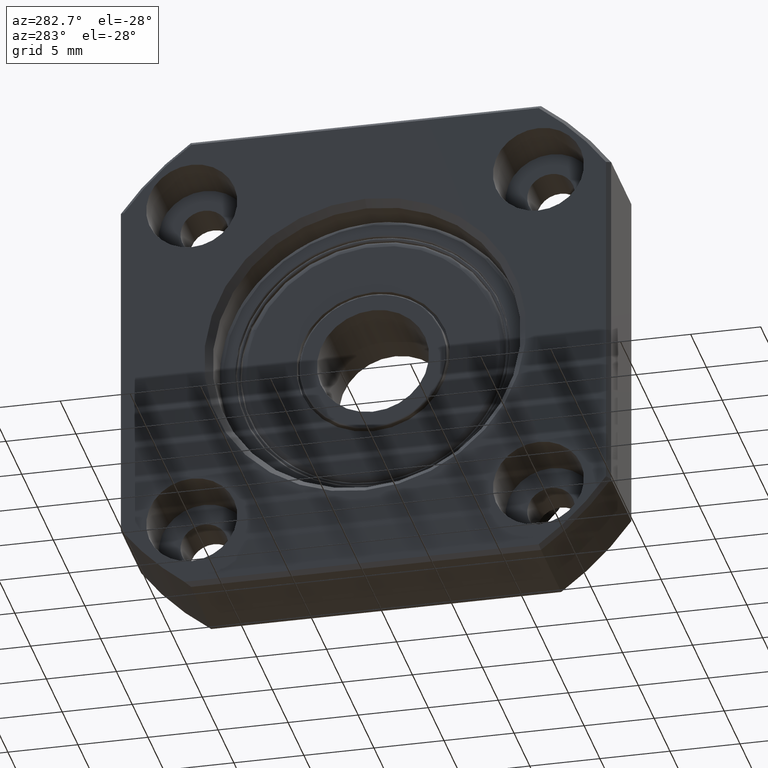
[diagram: clean part render]
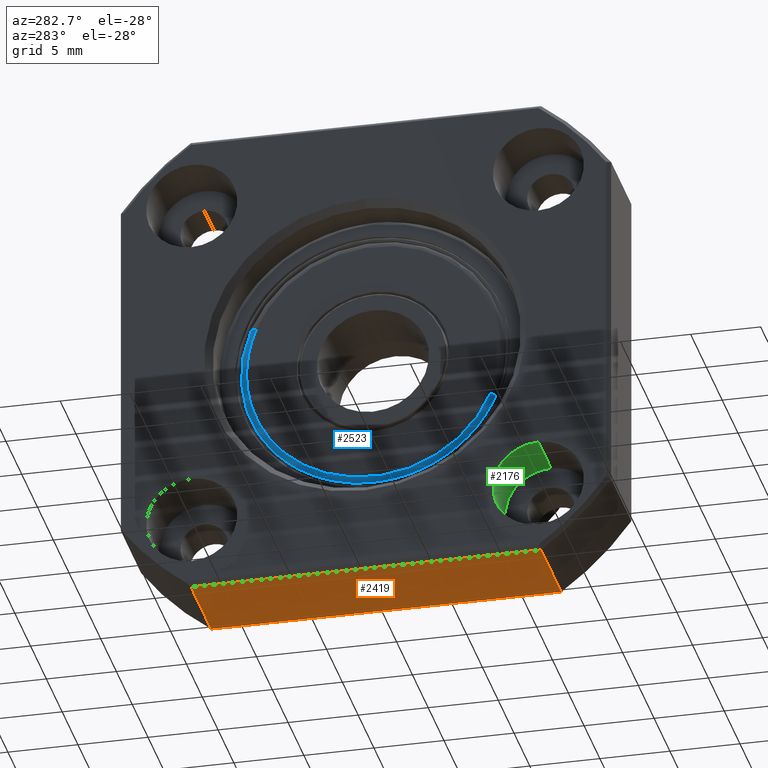
[diagram: same view with three faces highlighted in distinct colors, each labeled with its STEP entity id]
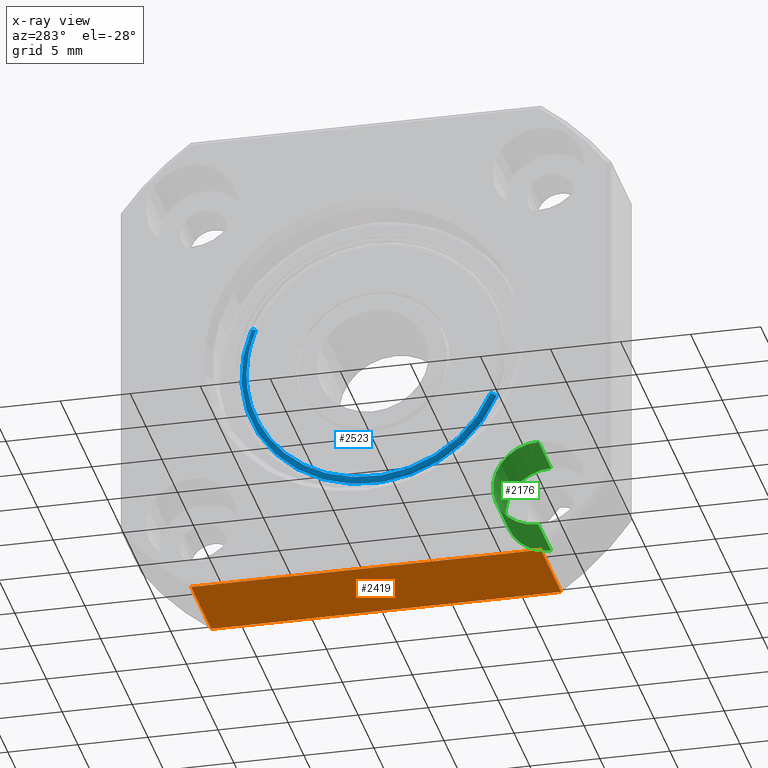
[diagram: x-ray of the same camera — body ghosted, the three highlighted faces saturated]
A machine part, auxiliary view with three faces highlighted in distinct colors.
The next image is the same camera in x-ray (body ghosted, the three faces saturated) — at least one of them is partly hidden behind the body in this view.
Their STEP definitions:

[orange] entity #2419 — the highlighted planar face has unit normal (0, 0, -1).
#348 = DIRECTION ( 'NONE',  ( -1.000000000000000000, -0.0000000000000000000, -0.0000000000000000000 ) ) ;
#430 = CARTESIAN_POINT ( 'NONE',  ( 0.2999999999999981600, -17.50000000000000700, -17.49999999999994000 ) ) ;
#477 = CARTESIAN_POINT ( 'NONE',  ( -81.64660725642808400, 12.48999599679687300, -17.49999999999994700 ) ) ;
#518 = CARTESIAN_POINT ( 'NONE',  ( 50.00000000000000000, -12.48999599679687500, -17.49999999999994300 ) ) ;
#589 = DIRECTION ( 'NONE',  ( -1.000000000000000000, 0.0000000000000000000, -0.0000000000000000000 ) ) ;
#597 = EDGE_CURVE ( 'NONE', #3475, #1520, #6259, .T. ) ;
#984 = CARTESIAN_POINT ( 'NONE',  ( 6.700000000000011700, -12.48999599679688200, -17.49999999999994000 ) ) ;
#1000 = CARTESIAN_POINT ( 'NONE',  ( 6.700000000000010800, 12.48999599679688000, -17.49999999999994000 ) ) ;
#1382 = VERTEX_POINT ( 'NONE', #1454 ) ;
#1454 = CARTESIAN_POINT ( 'NONE',  ( 0.2999999999999868900, 12.48999599679688200, -17.49999999999994000 ) ) ;
#1520 = VERTEX_POINT ( 'NONE', #984 ) ;
#1670 = EDGE_CURVE ( 'NONE', #1520, #4528, #5928, .T. ) ;
#1753 = EDGE_CURVE ( 'NONE', #3475, #1382, #5899, .T. ) ;
#1764 = CARTESIAN_POINT ( 'NONE',  ( 0.3000000000000007700, -12.48999599679687800, -17.49999999999994000 ) ) ;
#1793 = EDGE_CURVE ( 'NONE', #1382, #4528, #5846, .T. ) ;
#2162 = PLANE ( 'NONE',  #4364 ) ;
#2165 = DIRECTION ( 'NONE',  ( -0.0000000000000000000, -1.000000000000000000, -0.0000000000000000000 ) ) ;
#2419 = ADVANCED_FACE ( 'NONE', ( #4804 ), #2162, .T. ) ;
#3470 = DIRECTION ( 'NONE',  ( -1.000000000000000000, 0.0000000000000000000, -0.0000000000000000000 ) ) ;
#3475 = VERTEX_POINT ( 'NONE', #1000 ) ;
#3495 = CARTESIAN_POINT ( 'NONE',  ( 50.00000000000000000, -17.50000000000000700, -17.49999999999994300 ) ) ;
#3503 = DIRECTION ( 'NONE',  ( 0.0000000000000000000, 0.0000000000000000000, -1.000000000000000000 ) ) ;
#4364 = AXIS2_PLACEMENT_3D ( 'NONE', #3495, #3503, #3470 ) ;
#4528 = VERTEX_POINT ( 'NONE', #1764 ) ;
#4804 = FACE_OUTER_BOUND ( 'NONE', #5916, .T. ) ;
#5463 = ORIENTED_EDGE ( 'NONE', *, *, #1753, .F. ) ;
#5501 = ORIENTED_EDGE ( 'NONE', *, *, #597, .T. ) ;
#5508 = ORIENTED_EDGE ( 'NONE', *, *, #1670, .T. ) ;
#5516 = ORIENTED_EDGE ( 'NONE', *, *, #1793, .F. ) ;
#5631 = CARTESIAN_POINT ( 'NONE',  ( 6.700000000000011700, -17.50000000000000700, -17.49999999999994300 ) ) ;
#5841 = VECTOR ( 'NONE', #6500, 1000.000000000000000 ) ;
#5846 = LINE ( 'NONE', #430, #5841 ) ;
#5862 = VECTOR ( 'NONE', #348, 1000.000000000000000 ) ;
#5883 = VECTOR ( 'NONE', #589, 1000.000000000000000 ) ;
#5899 = LINE ( 'NONE', #477, #5862 ) ;
#5916 = EDGE_LOOP ( 'NONE', ( #5463, #5501, #5508, #5516 ) ) ;
#5928 = LINE ( 'NONE', #518, #5883 ) ;
#6245 = VECTOR ( 'NONE', #2165, 1000.000000000000000 ) ;
#6259 = LINE ( 'NONE', #5631, #6245 ) ;
#6500 = DIRECTION ( 'NONE',  ( -0.0000000000000000000, -1.000000000000000000, -0.0000000000000000000 ) ) ;

[blue] entity #2523 — the highlighted face is a freeform B-spline surface patch.
#342 = ORIENTED_EDGE ( 'NONE', *, *, #3570, .F. ) ;
#486 = AXIS2_PLACEMENT_3D ( 'NONE', #5932, #5918, #5898 ) ;
#874 = CARTESIAN_POINT ( 'NONE',  ( 2.599999999999976600, -8.366337432625812200, -3.456605973978667600 ) ) ;
#1129 = ORIENTED_EDGE ( 'NONE', *, *, #5982, .T. ) ;
#1164 = VERTEX_POINT ( 'NONE', #3063 ) ;
#1432 = ORIENTED_EDGE ( 'NONE', *, *, #5855, .T. ) ;
#1550 = VERTEX_POINT ( 'NONE', #874 ) ;
#1730 = CIRCLE ( 'NONE', #486, 9.473602486729578900 ) ;
#2198 = VERTEX_POINT ( 'NONE', #3431 ) ;
#2523 = ADVANCED_FACE ( 'NONE', ( #4533 ), #3888, .T. ) ;
#2867 = AXIS2_PLACEMENT_3D ( 'NONE', #4748, #4705, #4689 ) ;
#3063 = CARTESIAN_POINT ( 'NONE',  ( 2.599999999999976600, 8.366337432625812200, 3.456605973978667600 ) ) ;
#3430 = CIRCLE ( 'NONE', #2867, 0.4999999999999997200 ) ;
#3431 = CARTESIAN_POINT ( 'NONE',  ( 2.830769230769209600, 8.755736400043270300, 3.617488655065300500 ) ) ;
#3521 = CIRCLE ( 'NONE', #3874, 0.4999999999999997200 ) ;
#3570 = EDGE_CURVE ( 'NONE', #2198, #1164, #3521, .T. ) ;
#3761 = EDGE_CURVE ( 'NONE', #5017, #1550, #3430, .T. ) ;
#3874 = AXIS2_PLACEMENT_3D ( 'NONE', #5426, #5325, #5373 ) ;
#3888 =( BOUNDED_SURFACE ( )  B_SPLINE_SURFACE ( 3, 3, ( 
 ( #5556, #4060, #4063, #5539 ),
 ( #5538, #5532, #5529, #5507 ),
 ( #5491, #5478, #5471, #5461 ),
 ( #5459, #5454, #5453, #5448 ) ),
 .UNSPECIFIED., .F., .F., .T. ) 
 B_SPLINE_SURFACE_WITH_KNOTS ( ( 4, 4 ),
 ( 4, 4 ),
 ( 0.0000000000000000000, 1.000000000000000000 ),
 ( 0.0000000000000000000, 1.000000000000000000 ),
 .UNSPECIFIED. ) 
 GEOMETRIC_REPRESENTATION_ITEM ( )  RATIONAL_B_SPLINE_SURFACE ( (
 ( 1.000000000000000000, 0.3333333333333334300, 0.3333333333333334300, 1.000000000000000000),
 ( 0.9180386795380197600, 0.3060128931793400000, 0.3060128931793400000, 0.9180386795380197600),
 ( 0.9180386795380197600, 0.3060128931793400000, 0.3060128931793400000, 0.9180386795380197600),
 ( 1.000000000000000000, 0.3333333333333334300, 0.3333333333333334300, 1.000000000000000000) ) ) 
 REPRESENTATION_ITEM ( '' )  SURFACE ( )  );
#4060 = CARTESIAN_POINT ( 'NONE',  ( 2.830769230769208700, -1.520759089912668600, -21.12896145515183800 ) ) ;
#4063 = CARTESIAN_POINT ( 'NONE',  ( 2.830769230769208700, 15.99071371017386600, -13.89398414502123600 ) ) ;
#4533 = FACE_OUTER_BOUND ( 'NONE', #5163, .T. ) ;
#4689 = DIRECTION ( 'NONE',  ( 0.0000000000000000000, -0.9242245927363028600, -0.3818493186865930500 ) ) ;
#4705 = DIRECTION ( 'NONE',  ( -1.902172959797289300E-022, 0.3818493186865929400, -0.9242245927363028600 ) ) ;
#4748 = CARTESIAN_POINT ( 'NONE',  ( 3.099999999999976100, -8.366337432625808600, -3.456605973978666300 ) ) ;
#5017 = VERTEX_POINT ( 'NONE', #5456 ) ;
#5097 = CARTESIAN_POINT ( 'NONE',  ( 2.599999999999976600, 8.366337432625812200, 3.456605973978667600 ) ) ;
#5105 = CARTESIAN_POINT ( 'NONE',  ( 2.599999999999976100, 15.27954938058314500, -13.27606889127295300 ) ) ;
#5118 = CARTESIAN_POINT ( 'NONE',  ( 2.599999999999976100, -1.453125484668477600, -20.18928083923028500 ) ) ;
#5163 = EDGE_LOOP ( 'NONE', ( #342, #1432, #5277, #1129 ) ) ;
#5277 = ORIENTED_EDGE ( 'NONE', *, *, #3761, .T. ) ;
#5291 = CARTESIAN_POINT ( 'NONE',  ( 2.599999999999976600, -8.366337432625812200, -3.456605973978667600 ) ) ;
#5325 = DIRECTION ( 'NONE',  ( 1.902172959797289500E-022, -0.3818493186865928300, 0.9242245927363028600 ) ) ;
#5373 = DIRECTION ( 'NONE',  ( 0.0000000000000000000, 0.9242245927363028600, 0.3818493186865930500 ) ) ;
#5426 = CARTESIAN_POINT ( 'NONE',  ( 3.099999999999976100, 8.366337432625808600, 3.456605973978665400 ) ) ;
#5448 = CARTESIAN_POINT ( 'NONE',  ( 2.599999999999976100, 8.366337432625812200, 3.456605973978666300 ) ) ;
#5453 = CARTESIAN_POINT ( 'NONE',  ( 2.599999999999976100, 15.27954938058314100, -13.27606889127295300 ) ) ;
#5454 = CARTESIAN_POINT ( 'NONE',  ( 2.599999999999976100, -1.453125484668479400, -20.18928083923028500 ) ) ;
#5456 = CARTESIAN_POINT ( 'NONE',  ( 2.830769230769209600, -8.755736400043270300, -3.617488655065301800 ) ) ;
#5459 = CARTESIAN_POINT ( 'NONE',  ( 2.599999999999976100, -8.366337432625812200, -3.456605973978667200 ) ) ;
#5461 = CARTESIAN_POINT ( 'NONE',  ( 2.599999999999976600, 8.527544559334892000, 3.523209732399589900 ) ) ;
#5471 = CARTESIAN_POINT ( 'NONE',  ( 2.599999999999977400, 15.57396402413407100, -13.53187938627019100 ) ) ;
#5478 = CARTESIAN_POINT ( 'NONE',  ( 2.599999999999977400, -1.481125094535712400, -20.57829885106937700 ) ) ;
#5491 = CARTESIAN_POINT ( 'NONE',  ( 2.599999999999976600, -8.527544559334892000, -3.523209732399590300 ) ) ;
#5507 = CARTESIAN_POINT ( 'NONE',  ( 2.683790670957095800, 8.668932562584533500, 3.581625092838649000 ) ) ;
#5529 = CARTESIAN_POINT ( 'NONE',  ( 2.683790670957095800, 15.83218274826183200, -13.75624003233041600 ) ) ;
#5532 = CARTESIAN_POINT ( 'NONE',  ( 2.683790670957095800, -1.505682376907234900, -20.91949021800771600 ) ) ;
#5538 = CARTESIAN_POINT ( 'NONE',  ( 2.683790670957095800, -8.668932562584533500, -3.581625092838650400 ) ) ;
#5539 = CARTESIAN_POINT ( 'NONE',  ( 2.830769230769208700, 8.755736400043270300, 3.617488655065300500 ) ) ;
#5556 = CARTESIAN_POINT ( 'NONE',  ( 2.830769230769208700, -8.755736400043270300, -3.617488655065301400 ) ) ;
#5855 = EDGE_CURVE ( 'NONE', #2198, #5017, #1730, .T. ) ;
#5898 = DIRECTION ( 'NONE',  ( 0.0000000000000000000, -0.9242245927363027500, -0.3818493186865930000 ) ) ;
#5918 = DIRECTION ( 'NONE',  ( -1.000000000000000000, 3.397014313860625000E-023, 2.198478309166406500E-022 ) ) ;
#5932 = CARTESIAN_POINT ( 'NONE',  ( 2.830769230769209600, 9.145807768086202700E-024, 5.918980063140262700E-023 ) ) ;
#5982 = EDGE_CURVE ( 'NONE', #1550, #1164, #6170, .T. ) ;
#6170 =( BOUNDED_CURVE ( )  B_SPLINE_CURVE ( 3, ( #5291, #5118, #5105, #5097 ),
 .UNSPECIFIED., .F., .F. ) 
 B_SPLINE_CURVE_WITH_KNOTS ( ( 4, 4 ),
 ( 0.0000000000000000000, 1.000000000000000000 ),
 .UNSPECIFIED. ) 
 CURVE ( )  GEOMETRIC_REPRESENTATION_ITEM ( )  RATIONAL_B_SPLINE_CURVE ( ( 1.000000000000000000, 0.3333333333333333700, 0.3333333333333333700, 1.000000000000000000 ) ) 
 REPRESENTATION_ITEM ( '' )  );

[green] entity #2176 — the highlighted cylindrical surface (partial cylindrical patch) has radius 3.25 mm, axis along (-1, -0, -0).
#20 = CARTESIAN_POINT ( 'NONE',  ( 4.000000000000000000, -12.37436867076460000, -9.124368670764555500 ) ) ;
#164 = CARTESIAN_POINT ( 'NONE',  ( 0.0000000000000000000, -12.37436867076460000, -9.124368670764555500 ) ) ;
#356 = EDGE_LOOP ( 'NONE', ( #5807, #5817, #5831, #5836 ) ) ;
#706 = AXIS2_PLACEMENT_3D ( 'NONE', #3691, #3712, #3769 ) ;
#1105 = EDGE_CURVE ( 'NONE', #5761, #6273, #6093, .T. ) ;
#1149 = DIRECTION ( 'NONE',  ( 0.0000000000000000000, 0.0000000000000000000, 1.000000000000000000 ) ) ;
#1155 = DIRECTION ( 'NONE',  ( -1.000000000000000000, -0.0000000000000000000, -0.0000000000000000000 ) ) ;
#1161 = CARTESIAN_POINT ( 'NONE',  ( 0.0000000000000000000, -12.37436867076460000, -12.37436867076455500 ) ) ;
#1733 = VERTEX_POINT ( 'NONE', #164 ) ;
#2176 = ADVANCED_FACE ( 'NONE', ( #5476 ), #5439, .F. ) ;
#2310 = EDGE_CURVE ( 'NONE', #1733, #2445, #5076, .T. ) ;
#2445 = VERTEX_POINT ( 'NONE', #6505 ) ;
#2696 = DIRECTION ( 'NONE',  ( -1.000000000000000000, -0.0000000000000000000, -0.0000000000000000000 ) ) ;
#2708 = AXIS2_PLACEMENT_3D ( 'NONE', #3362, #3327, #3336 ) ;
#2774 = CARTESIAN_POINT ( 'NONE',  ( 0.0000000000000000000, -12.37436867076460000, -9.124368670764555500 ) ) ;
#2982 = DIRECTION ( 'NONE',  ( -1.000000000000000000, -0.0000000000000000000, -0.0000000000000000000 ) ) ;
#3016 = CARTESIAN_POINT ( 'NONE',  ( 0.0000000000000000000, -12.37436867076460000, -15.62436867076455400 ) ) ;
#3098 = VECTOR ( 'NONE', #2696, 1000.000000000000000 ) ;
#3116 = LINE ( 'NONE', #2774, #3098 ) ;
#3141 = VECTOR ( 'NONE', #2982, 1000.000000000000000 ) ;
#3148 = LINE ( 'NONE', #3016, #3141 ) ;
#3327 = DIRECTION ( 'NONE',  ( -1.000000000000000000, -0.0000000000000000000, -0.0000000000000000000 ) ) ;
#3336 = DIRECTION ( 'NONE',  ( 0.0000000000000000000, 0.0000000000000000000, 1.000000000000000000 ) ) ;
#3362 = CARTESIAN_POINT ( 'NONE',  ( 4.000000000000000000, -12.37436867076460000, -12.37436867076455500 ) ) ;
#3691 = CARTESIAN_POINT ( 'NONE',  ( 0.0000000000000000000, -12.37436867076460000, -12.37436867076455500 ) ) ;
#3712 = DIRECTION ( 'NONE',  ( -1.000000000000000000, -0.0000000000000000000, -0.0000000000000000000 ) ) ;
#3769 = DIRECTION ( 'NONE',  ( 0.0000000000000000000, 0.0000000000000000000, 1.000000000000000000 ) ) ;
#3805 = CARTESIAN_POINT ( 'NONE',  ( 4.000000000000000000, -12.37436867076460000, -15.62436867076455400 ) ) ;
#4155 = EDGE_CURVE ( 'NONE', #6273, #2445, #3148, .T. ) ;
#4244 = EDGE_CURVE ( 'NONE', #5761, #1733, #3116, .T. ) ;
#5076 = CIRCLE ( 'NONE', #5706, 3.249999999999999600 ) ;
#5439 = CYLINDRICAL_SURFACE ( 'NONE', #706, 3.249999999999999600 ) ;
#5476 = FACE_OUTER_BOUND ( 'NONE', #356, .T. ) ;
#5706 = AXIS2_PLACEMENT_3D ( 'NONE', #1161, #1155, #1149 ) ;
#5761 = VERTEX_POINT ( 'NONE', #20 ) ;
#5807 = ORIENTED_EDGE ( 'NONE', *, *, #4155, .F. ) ;
#5817 = ORIENTED_EDGE ( 'NONE', *, *, #1105, .F. ) ;
#5831 = ORIENTED_EDGE ( 'NONE', *, *, #4244, .T. ) ;
#5836 = ORIENTED_EDGE ( 'NONE', *, *, #2310, .T. ) ;
#6093 = CIRCLE ( 'NONE', #2708, 3.249999999999999600 ) ;
#6273 = VERTEX_POINT ( 'NONE', #3805 ) ;
#6505 = CARTESIAN_POINT ( 'NONE',  ( 0.0000000000000000000, -12.37436867076460000, -15.62436867076455400 ) ) ;